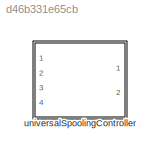
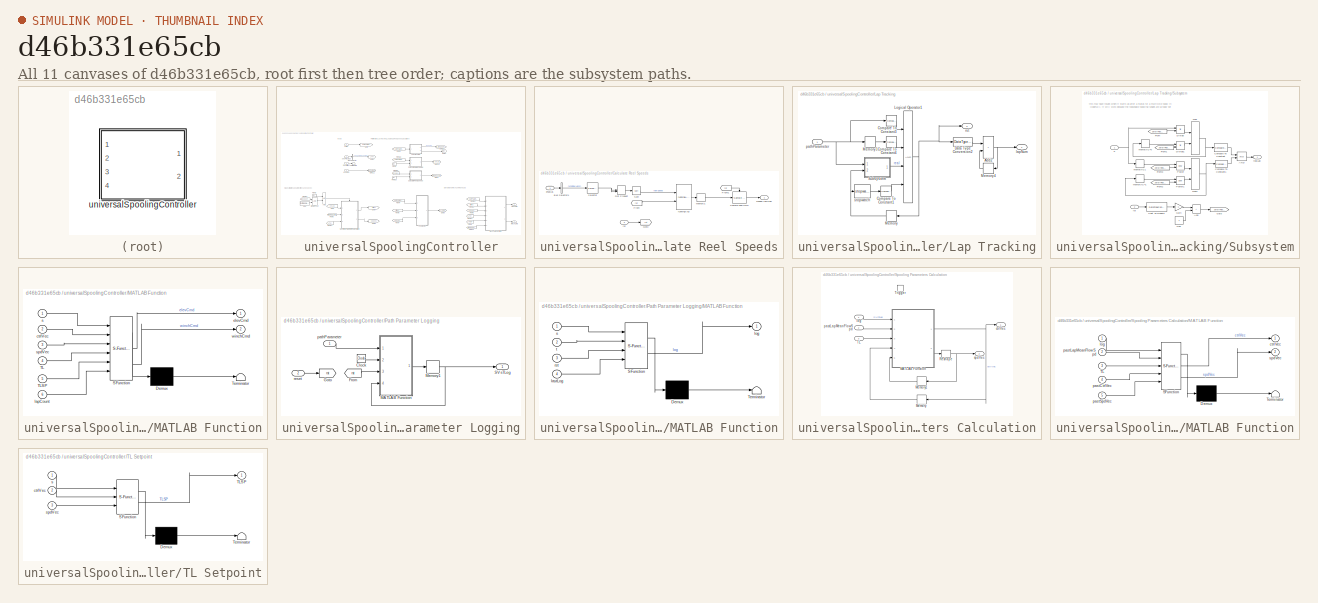
[diagram: thumbnail index - all 11 canvases of the model, root first then tree order]
MODEL slx_d46b331e65cb
KIND library
CONFIG AbsTol = auto
CONFIG EnableMultiTasking = off
CONFIG FixedStep = auto
CONFIG MaxStep = auto
CONFIG MinStep = auto
CONFIG RelTol = 1e-3
CONFIG SampleTimeConstraint = Unconstrained
CONFIG Solver = VariableStepAuto
CONFIG SolverName = VariableStepAuto
CONFIG StartTime = 0.0
CONFIG StopTime = 10.0
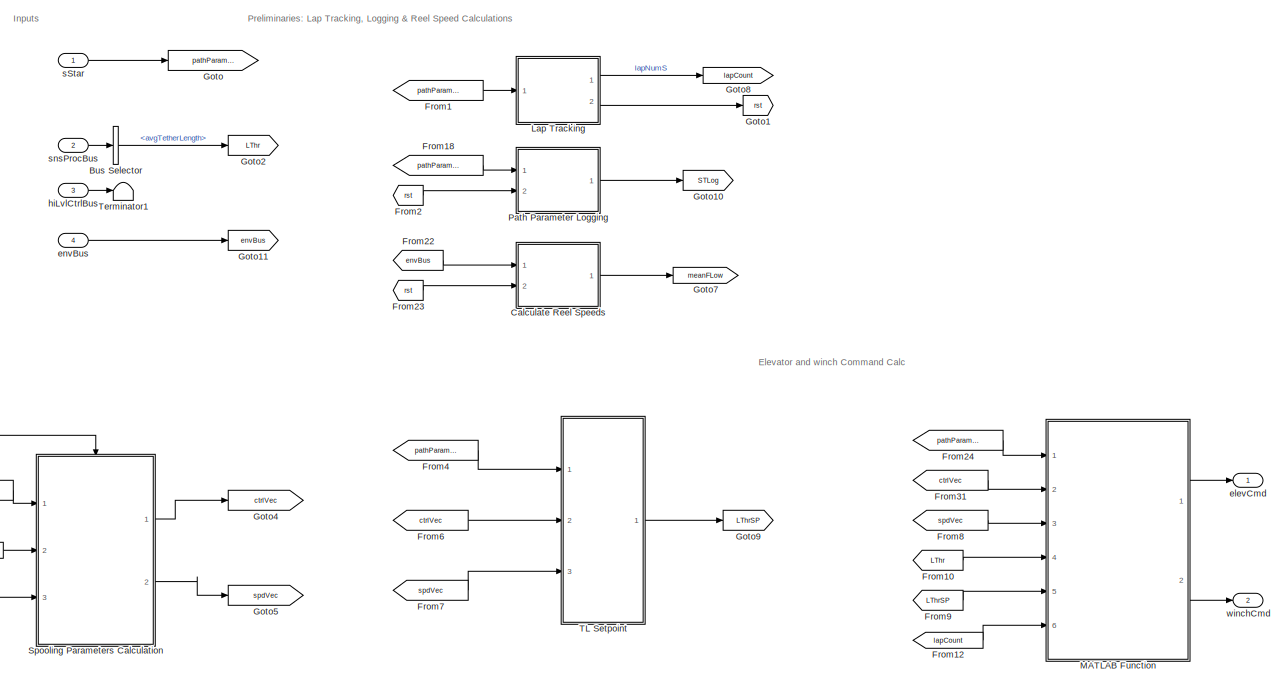
[diagram: universalSpoolingController - part 1/2, most of the canvas]
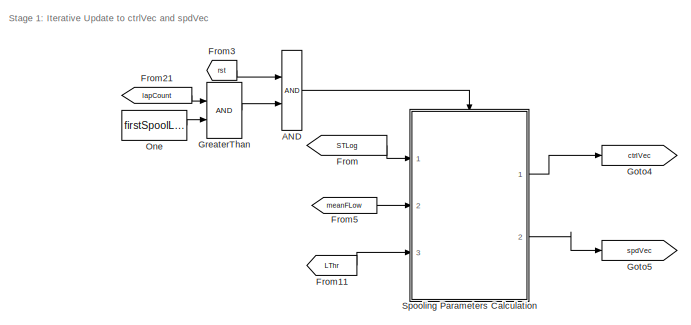
[diagram: universalSpoolingController - part 2/2, bottom left region]
BLOCK [SubSystem] universalSpoolingController
  Ports = [4, 2]
  RequestExecContextInheritance = off
  VariantControl = strcmpi(SPOOLINGCONTROLLER,'netZeroSpoolingController')
BLOCK [Logic] universalSpoolingController/AND
  AllPortsSameDT = off
  OutDataTypeStr = boolean
  Ports = [2, 1]
BLOCK [BusSelector] universalSpoolingController/Bus Selector
  OutputSignals = avgTetherLength
  Ports = [1, 1]
BLOCK [SubSystem] universalSpoolingController/Calculate Reel Speeds
  Ports = [2, 1]
  RequestExecContextInheritance = off
BLOCK [BusSelector] universalSpoolingController/Calculate Reel Speeds/Bus Selector1
  OutputSignals = vhclFlowVecs
  Ports = [1, 1]
BLOCK [DotProduct] universalSpoolingController/Calculate Reel Speeds/Dot Product
  OutDataTypeStr = Inherit: Inherit via internal rule
BLOCK [From] universalSpoolingController/Calculate Reel Speeds/From
  GotoTag = rst
BLOCK [From] universalSpoolingController/Calculate Reel Speeds/From1
  GotoTag = rst
BLOCK [Goto] universalSpoolingController/Calculate Reel Speeds/Goto
  GotoTag = rst
BLOCK [Memory] universalSpoolingController/Calculate Reel Speeds/Memory1
BLOCK [Reference] universalSpoolingController/Calculate Reel Speeds/Sample and Hold  REF=dspsigops/Sample
and Hold
  Ports = [1, 1, 0, 1]
  SourceBlock = dspsigops/Sample\nand Hold
  SourceProductBaseCode = DS
  SourceType = Sample and Hold
BLOCK [Selector] universalSpoolingController/Calculate Reel Speeds/Selector
  IndexOptions = Select all,Index vector (dialog)
  Indices = [1 3],5
  InputPortWidth = 3
  NumberOfDimensions = 2
  OutputSizes = 1,1
  Ports = [1, 1]
BLOCK [Sqrt] universalSpoolingController/Calculate Reel Speeds/Sqrt
BLOCK [Inport] universalSpoolingController/Calculate Reel Speeds/envBus
BLOCK [Outport] universalSpoolingController/Calculate Reel Speeds/meanFlowSpd
  VectorParamsAs1DForOutWhenUnconnected = off
BLOCK [Inport] universalSpoolingController/Calculate Reel Speeds/rst
  Port = 2
BLOCK [Reference] universalSpoolingController/Calculate Reel Speeds/runningAvg  REF=runningAvg_ul/runningAvg
  Ports = [2, 1]
  SourceBlock = runningAvg_ul/runningAvg
  SourceType = SubSystem
BLOCK [From] universalSpoolingController/From
  GotoTag = STLog
BLOCK [From] universalSpoolingController/From1
  GotoTag = pathParameter
BLOCK [From] universalSpoolingController/From10
  GotoTag = LThr
BLOCK [From] universalSpoolingController/From11
  GotoTag = LThr
BLOCK [From] universalSpoolingController/From12
  GotoTag = lapCount
BLOCK [From] universalSpoolingController/From18
  GotoTag = pathParameter
BLOCK [From] universalSpoolingController/From2
  GotoTag = rst
BLOCK [From] universalSpoolingController/From21
  GotoTag = lapCount
BLOCK [From] universalSpoolingController/From22
  GotoTag = envBus
BLOCK [From] universalSpoolingController/From23
  GotoTag = rst
BLOCK [From] universalSpoolingController/From24
  GotoTag = pathParameter
BLOCK [From] universalSpoolingController/From3
  GotoTag = rst
BLOCK [From] universalSpoolingController/From31
  GotoTag = ctrlVec
BLOCK [From] universalSpoolingController/From4
  GotoTag = pathParameter
BLOCK [From] universalSpoolingController/From5
  GotoTag = meanFLow
BLOCK [From] universalSpoolingController/From6
  GotoTag = ctrlVec
BLOCK [From] universalSpoolingController/From7
  GotoTag = spdVec
BLOCK [From] universalSpoolingController/From8
  GotoTag = spdVec
BLOCK [From] universalSpoolingController/From9
  GotoTag = LThrSP
BLOCK [Goto] universalSpoolingController/Goto
  GotoTag = pathParameter
BLOCK [Goto] universalSpoolingController/Goto1
  GotoTag = rst
BLOCK [Goto] universalSpoolingController/Goto10
  GotoTag = STLog
BLOCK [Goto] universalSpoolingController/Goto11
  GotoTag = envBus
BLOCK [Goto] universalSpoolingController/Goto2
  GotoTag = LThr
BLOCK [Goto] universalSpoolingController/Goto4
  GotoTag = ctrlVec
BLOCK [Goto] universalSpoolingController/Goto5
  GotoTag = spdVec
BLOCK [Goto] universalSpoolingController/Goto7
  GotoTag = meanFLow
BLOCK [Goto] universalSpoolingController/Goto8
  GotoTag = lapCount
BLOCK [Goto] universalSpoolingController/Goto9
  GotoTag = LThrSP
BLOCK [RelationalOperator] universalSpoolingController/GreaterThan
  InputSameDT = off
  OutDataTypeStr = boolean
  Ports = [2, 1]
  RndMeth = Simplest
BLOCK [SubSystem] universalSpoolingController/Lap Tracking
  Ports = [1, 2]
  RequestExecContextInheritance = off
BLOCK [Sum] universalSpoolingController/Lap Tracking/Add2
  IconShape = rectangular
  Ports = [2, 1]
BLOCK [Reference] universalSpoolingController/Lap Tracking/Compare To Constant1  REF=simulink/Logic and Bit
Operations/Compare
To Constant
  Ports = [1, 1]
  SourceBlock = simulink/Logic and Bit\nOperations/Compare\nTo Constant
  SourceProductBaseCode = SL
  SourceType = Compare To Constant
BLOCK [Reference] universalSpoolingController/Lap Tracking/Compare To Constant3  REF=simulink/Logic and Bit
Operations/Compare
To Constant
  Ports = [1, 1]
  SourceBlock = simulink/Logic and Bit\nOperations/Compare\nTo Constant
  SourceProductBaseCode = SL
  SourceType = Compare To Constant
BLOCK [Reference] universalSpoolingController/Lap Tracking/Compare To Constant4  REF=simulink/Logic and Bit
Operations/Compare
To Constant
  Ports = [1, 1]
  SourceBlock = simulink/Logic and Bit\nOperations/Compare\nTo Constant
  SourceProductBaseCode = SL
  SourceType = Compare To Constant
BLOCK [DataTypeConversion] universalSpoolingController/Lap Tracking/Data Type Conversion2
  OutDataTypeStr = double
  RndMeth = Floor
  SaturateOnIntegerOverflow = off
BLOCK [Logic] universalSpoolingController/Lap Tracking/Logical Operator1
  AllPortsSameDT = off
  Inputs = 4
  OutDataTypeStr = boolean
  Ports = [4, 1]
BLOCK [Memory] universalSpoolingController/Lap Tracking/Memory
  InitialCondition = false
BLOCK [Memory] universalSpoolingController/Lap Tracking/Memory3
BLOCK [Memory] universalSpoolingController/Lap Tracking/Memory4
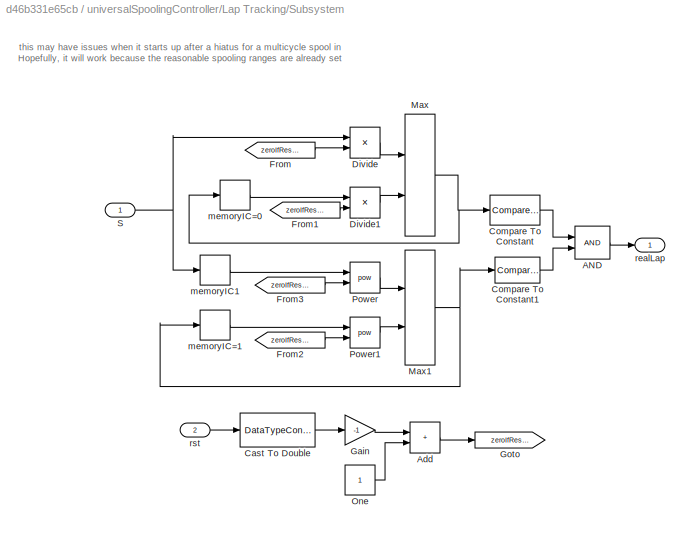
BLOCK [SubSystem] universalSpoolingController/Lap Tracking/Subsystem
  Ports = [2, 1]
  RequestExecContextInheritance = off
BLOCK [Logic] universalSpoolingController/Lap Tracking/Subsystem/AND
  AllPortsSameDT = off
  OutDataTypeStr = boolean
  Ports = [2, 1]
BLOCK [Sum] universalSpoolingController/Lap Tracking/Subsystem/Add
  IconShape = rectangular
  Ports = [2, 1]
BLOCK [DataTypeConversion] universalSpoolingController/Lap Tracking/Subsystem/Cast To Double
  OutDataTypeStr = double
  RndMeth = Floor
  SaturateOnIntegerOverflow = off
BLOCK [Reference] universalSpoolingController/Lap Tracking/Subsystem/Compare To Constant  REF=simulink/Logic and Bit
Operations/Compare
To Constant
  Ports = [1, 1]
  SourceBlock = simulink/Logic and Bit\nOperations/Compare\nTo Constant
  SourceProductBaseCode = SL
  SourceType = Compare To Constant
BLOCK [Reference] universalSpoolingController/Lap Tracking/Subsystem/Compare To Constant1  REF=simulink/Logic and Bit
Operations/Compare
To Constant
  Ports = [1, 1]
  SourceBlock = simulink/Logic and Bit\nOperations/Compare\nTo Constant
  SourceProductBaseCode = SL
  SourceType = Compare To Constant
BLOCK [Product] universalSpoolingController/Lap Tracking/Subsystem/Divide
  Inputs = **
  Ports = [2, 1]
BLOCK [Product] universalSpoolingController/Lap Tracking/Subsystem/Divide1
  Inputs = **
  Ports = [2, 1]
BLOCK [From] universalSpoolingController/Lap Tracking/Subsystem/From
  GotoTag = zeroIfReset
BLOCK [From] universalSpoolingController/Lap Tracking/Subsystem/From1
  GotoTag = zeroIfReset
BLOCK [From] universalSpoolingController/Lap Tracking/Subsystem/From2
  GotoTag = zeroIfReset
BLOCK [From] universalSpoolingController/Lap Tracking/Subsystem/From3
  GotoTag = zeroIfReset
BLOCK [Gain] universalSpoolingController/Lap Tracking/Subsystem/Gain
  Gain = -1
BLOCK [Goto] universalSpoolingController/Lap Tracking/Subsystem/Goto
  GotoTag = zeroIfReset
BLOCK [MinMax] universalSpoolingController/Lap Tracking/Subsystem/Max
  Function = max
  Inputs = 2
  Ports = [2, 1]
BLOCK [MinMax] universalSpoolingController/Lap Tracking/Subsystem/Max1
  Inputs = 2
  Ports = [2, 1]
BLOCK [Constant] universalSpoolingController/Lap Tracking/Subsystem/One
  OutDataTypeStr = Inherit: Inherit via back propagation
BLOCK [Math] universalSpoolingController/Lap Tracking/Subsystem/Power
  Operator = pow
  Ports = [2, 1]
BLOCK [Math] universalSpoolingController/Lap Tracking/Subsystem/Power1
  Operator = pow
  Ports = [2, 1]
BLOCK [Inport] universalSpoolingController/Lap Tracking/Subsystem/S
BLOCK [Memory] universalSpoolingController/Lap Tracking/Subsystem/memoryIC1
  InitialCondition = 1
BLOCK [Memory] universalSpoolingController/Lap Tracking/Subsystem/memoryIC=0
BLOCK [Memory] universalSpoolingController/Lap Tracking/Subsystem/memoryIC=1
  InitialCondition = 1
BLOCK [Outport] universalSpoolingController/Lap Tracking/Subsystem/realLap
BLOCK [Inport] universalSpoolingController/Lap Tracking/Subsystem/rst
  Port = 2
BLOCK [Outport] universalSpoolingController/Lap Tracking/lapNum
  VectorParamsAs1DForOutWhenUnconnected = off
BLOCK [Inport] universalSpoolingController/Lap Tracking/pathParameter
BLOCK [Outport] universalSpoolingController/Lap Tracking/rst
  Port = 2
  VectorParamsAs1DForOutWhenUnconnected = off
BLOCK [Reference] universalSpoolingController/Lap Tracking/stopwatch  REF=stopwatch_ul/stopwatch  (lib defined in slx_5231e8830116, slx_6b86a6863970)
  Ports = [1, 1]
  SourceBlock = stopwatch_ul/stopwatch
  SourceType = SubSystem
BLOCK [SubSystem] universalSpoolingController/MATLAB Function
  ErrorFcn = Stateflow.Translate.translate
  PermitHierarchicalResolution = ExplicitOnly
  Ports = [6, 2]
  RequestExecContextInheritance = off
  SFBlockType = MATLAB Function
  TreatAsAtomicUnit = on
BLOCK [Demux] universalSpoolingController/MATLAB Function/ Demux 
  Outputs = 1
  Ports = [1, 1]
BLOCK [S-Function] universalSpoolingController/MATLAB Function/ SFunction 
  EnableBusSupport = off
  FunctionName = sf_sfun
  Parameters = elevDeflIn,firstSpoolLap
  PortCounts = [6 3]
  Ports = [6, 3]
  SFcnIsStateOwnerBlock = off
  SFunctionDeploymentMode = off
  Tag = Stateflow S-Function 4
BLOCK [Terminator] universalSpoolingController/MATLAB Function/ Terminator 
BLOCK [Inport] universalSpoolingController/MATLAB Function/TL
  Port = 4
BLOCK [Inport] universalSpoolingController/MATLAB Function/TLSP
  Port = 5
BLOCK [Inport] universalSpoolingController/MATLAB Function/ctrlVec
  Port = 2
BLOCK [Outport] universalSpoolingController/MATLAB Function/elevCmd
  VectorParamsAs1DForOutWhenUnconnected = off
BLOCK [Inport] universalSpoolingController/MATLAB Function/lapCount
  Port = 6
BLOCK [Inport] universalSpoolingController/MATLAB Function/s
BLOCK [Inport] universalSpoolingController/MATLAB Function/spdVec
  Port = 3
BLOCK [Outport] universalSpoolingController/MATLAB Function/winchCmd
  Port = 2
  VectorParamsAs1DForOutWhenUnconnected = off
BLOCK [Constant] universalSpoolingController/One
  OutDataTypeStr = Inherit: Inherit via back propagation
  Value = firstSpoolLap
BLOCK [SubSystem] universalSpoolingController/Path Parameter Logging
  Ports = [2, 1]
  RequestExecContextInheritance = off
BLOCK [Clock] universalSpoolingController/Path Parameter Logging/Clock
BLOCK [From] universalSpoolingController/Path Parameter Logging/From
  GotoTag = rst
BLOCK [Goto] universalSpoolingController/Path Parameter Logging/Goto
  GotoTag = rst
BLOCK [SubSystem] universalSpoolingController/Path Parameter Logging/MATLAB Function
  ErrorFcn = Stateflow.Translate.translate
  PermitHierarchicalResolution = ExplicitOnly
  Ports = [4, 1]
  RequestExecContextInheritance = off
  SFBlockType = MATLAB Function
  TreatAsAtomicUnit = on
BLOCK [Demux] universalSpoolingController/Path Parameter Logging/MATLAB Function/ Demux 
  Outputs = 1
  Ports = [1, 1]
BLOCK [S-Function] universalSpoolingController/Path Parameter Logging/MATLAB Function/ SFunction 
  EnableBusSupport = off
  FunctionName = sf_sfun
  PortCounts = [4 2]
  Ports = [4, 2]
  SFcnIsStateOwnerBlock = off
  SFunctionDeploymentMode = off
  Tag = Stateflow S-Function 2
BLOCK [Terminator] universalSpoolingController/Path Parameter Logging/MATLAB Function/ Terminator 
BLOCK [Inport] universalSpoolingController/Path Parameter Logging/MATLAB Function/lastLog
  Port = 4
BLOCK [Outport] universalSpoolingController/Path Parameter Logging/MATLAB Function/log
  VectorParamsAs1DForOutWhenUnconnected = off
BLOCK [Inport] universalSpoolingController/Path Parameter Logging/MATLAB Function/rst
  Port = 3
BLOCK [Inport] universalSpoolingController/Path Parameter Logging/MATLAB Function/s
BLOCK [Inport] universalSpoolingController/Path Parameter Logging/MATLAB Function/t
  Port = 2
BLOCK [Memory] universalSpoolingController/Path Parameter Logging/Memory1
  InitialCondition = zeros(1000,2)
BLOCK [Outport] universalSpoolingController/Path Parameter Logging/SVsTLog
  VectorParamsAs1DForOutWhenUnconnected = off
BLOCK [Inport] universalSpoolingController/Path Parameter Logging/pathParameter
BLOCK [Inport] universalSpoolingController/Path Parameter Logging/reset
  Port = 2
BLOCK [SubSystem] universalSpoolingController/Spooling Parameters Calculation
  Ports = [3, 2, 0, 1]
  RequestExecContextInheritance = off
  TreatAsAtomicUnit = on
BLOCK [SubSystem] universalSpoolingController/Spooling Parameters Calculation/MATLAB Function
  ErrorFcn = Stateflow.Translate.translate
  PermitHierarchicalResolution = ExplicitOnly
  Ports = [5, 2]
  RequestExecContextInheritance = off
  SFBlockType = MATLAB Function
  TreatAsAtomicUnit = on
BLOCK [Demux] universalSpoolingController/Spooling Parameters Calculation/MATLAB Function/ Demux 
  Outputs = 1
  Ports = [1, 1]
BLOCK [S-Function] universalSpoolingController/Spooling Parameters Calculation/MATLAB Function/ SFunction 
  EnableBusSupport = off
  FunctionName = sf_sfun
  Parameters = intraDrift
  PortCounts = [5 3]
  Ports = [5, 3]
  SFcnIsStateOwnerBlock = off
  SFunctionDeploymentMode = off
  Tag = Stateflow S-Function 1
BLOCK [Terminator] universalSpoolingController/Spooling Parameters Calculation/MATLAB Function/ Terminator 
BLOCK [Inport] universalSpoolingController/Spooling Parameters Calculation/MATLAB Function/TL
  Port = 3
BLOCK [Outport] universalSpoolingController/Spooling Parameters Calculation/MATLAB Function/ctrlVec
  VectorParamsAs1DForOutWhenUnconnected = off
BLOCK [Inport] universalSpoolingController/Spooling Parameters Calculation/MATLAB Function/log
BLOCK [Inport] universalSpoolingController/Spooling Parameters Calculation/MATLAB Function/pastCtrlVec
  Port = 4
BLOCK [Inport] universalSpoolingController/Spooling Parameters Calculation/MATLAB Function/pastLapMeanFlowSpd
  Port = 2
BLOCK [Inport] universalSpoolingController/Spooling Parameters Calculation/MATLAB Function/pastSpdVec
  Port = 5
BLOCK [Outport] universalSpoolingController/Spooling Parameters Calculation/MATLAB Function/spdVec
  Port = 2
  VectorParamsAs1DForOutWhenUnconnected = off
BLOCK [Memory] universalSpoolingController/Spooling Parameters Calculation/Memory
  InheritSampleTime = on
  InitialCondition = ctrlVecInit
BLOCK [Memory] universalSpoolingController/Spooling Parameters Calculation/Memory1
  InheritSampleTime = on
  InitialCondition = spdVecInit
BLOCK [Reshape] universalSpoolingController/Spooling Parameters Calculation/Reshape
  Ports = [1, 1]
BLOCK [Inport] universalSpoolingController/Spooling Parameters Calculation/TL
  Port = 3
BLOCK [TriggerPort] universalSpoolingController/Spooling Parameters Calculation/Trigger
  Ports = []
  StatesWhenEnabling = held
  VariantControl = Variant
BLOCK [Outport] universalSpoolingController/Spooling Parameters Calculation/ctrlVec
  InitialOutput = ctrlVecInit
  VectorParamsAs1DForOutWhenUnconnected = off
BLOCK [Inport] universalSpoolingController/Spooling Parameters Calculation/log
BLOCK [Inport] universalSpoolingController/Spooling Parameters Calculation/pastLapMeanFlowSpd
  Port = 2
BLOCK [Outport] universalSpoolingController/Spooling Parameters Calculation/spdVec
  InitialOutput = spdVecInit
  Port = 2
  VectorParamsAs1DForOutWhenUnconnected = off
BLOCK [SubSystem] universalSpoolingController/TL Setpoint
  ErrorFcn = Stateflow.Translate.translate
  PermitHierarchicalResolution = ExplicitOnly
  Ports = [3, 1]
  RequestExecContextInheritance = off
  SFBlockType = MATLAB Function
  TreatAsAtomicUnit = on
BLOCK [Demux] universalSpoolingController/TL Setpoint/ Demux 
  Outputs = 1
  Ports = [1, 1]
BLOCK [S-Function] universalSpoolingController/TL Setpoint/ SFunction 
  EnableBusSupport = off
  FunctionName = sf_sfun
  PortCounts = [3 2]
  Ports = [3, 2]
  SFcnIsStateOwnerBlock = off
  SFunctionDeploymentMode = off
  Tag = Stateflow S-Function 3
BLOCK [Terminator] universalSpoolingController/TL Setpoint/ Terminator 
BLOCK [Outport] universalSpoolingController/TL Setpoint/TLSP
BLOCK [Inport] universalSpoolingController/TL Setpoint/ctrlVec
  Port = 2
BLOCK [Inport] universalSpoolingController/TL Setpoint/s
BLOCK [Inport] universalSpoolingController/TL Setpoint/spdVec
  Port = 3
BLOCK [Terminator] universalSpoolingController/Terminator1
BLOCK [Outport] universalSpoolingController/elevCmd
  VectorParamsAs1DForOutWhenUnconnected = off
BLOCK [Inport] universalSpoolingController/envBus
  OutDataTypeStr = Bus: envBus
  Port = 4
BLOCK [Inport] universalSpoolingController/hiLvlCtrlBus
  OutDataTypeStr = Bus: hiLvlCtrlBus
  Port = 3
BLOCK [Inport] universalSpoolingController/sStar 
BLOCK [Inport] universalSpoolingController/snsProcBus
  OutDataTypeStr = Bus: sensorsProcessingBus
  Port = 2
BLOCK [Outport] universalSpoolingController/winchCmd
  Port = 2
  VectorParamsAs1DForOutWhenUnconnected = off
ANNOTATION universalSpoolingController: Elevator and winch Command Calc
ANNOTATION universalSpoolingController: Inputs
ANNOTATION universalSpoolingController: Preliminaries: Lap Tracking, Logging & Reel Speed Calculations
ANNOTATION universalSpoolingController: Stage 1: Iterative Update to ctrlVec and spdVec
ANNOTATION universalSpoolingController/Lap Tracking/Subsystem: this may have issues when it starts up after a hiatus for a multicycle spool in Hopefully, it will work because the reasonable spooling ranges are already set
LINE universalSpoolingController/AND:1 -> universalSpoolingController/Spooling Parameters Calculation:trigger
LINE universalSpoolingController/Bus Selector:1 -> universalSpoolingController/Goto2:1
LINE universalSpoolingController/Calculate Reel Speeds/Bus Selector1:1 -> universalSpoolingController/Calculate Reel Speeds/Selector:1
LINE universalSpoolingController/Calculate Reel Speeds/Dot Product:1 -> universalSpoolingController/Calculate Reel Speeds/Sqrt:1
LINE universalSpoolingController/Calculate Reel Speeds/From1:1 -> universalSpoolingController/Calculate Reel Speeds/Sample and Hold:trigger
LINE universalSpoolingController/Calculate Reel Speeds/From:1 -> universalSpoolingController/Calculate Reel Speeds/runningAvg:2
LINE universalSpoolingController/Calculate Reel Speeds/Memory1:1 -> universalSpoolingController/Calculate Reel Speeds/Sample and Hold:1
LINE universalSpoolingController/Calculate Reel Speeds/Sample and Hold:1 -> universalSpoolingController/Calculate Reel Speeds/meanFlowSpd:1
NET universalSpoolingController/Calculate Reel Speeds/Selector:1 -> universalSpoolingController/Calculate Reel Speeds/Dot Product:1, universalSpoolingController/Calculate Reel Speeds/Dot Product:2
LINE universalSpoolingController/Calculate Reel Speeds/Sqrt:1 -> universalSpoolingController/Calculate Reel Speeds/runningAvg:1
LINE universalSpoolingController/Calculate Reel Speeds/envBus:1 -> universalSpoolingController/Calculate Reel Speeds/Bus Selector1:1
LINE universalSpoolingController/Calculate Reel Speeds/rst:1 -> universalSpoolingController/Calculate Reel Speeds/Goto:1
LINE universalSpoolingController/Calculate Reel Speeds/runningAvg:1 -> universalSpoolingController/Calculate Reel Speeds/Memory1:1
LINE universalSpoolingController/Calculate Reel Speeds:1 -> universalSpoolingController/Goto7:1
LINE universalSpoolingController/From10:1 -> universalSpoolingController/MATLAB Function:4
LINE universalSpoolingController/From11:1 -> universalSpoolingController/Spooling Parameters Calculation:3
LINE universalSpoolingController/From12:1 -> universalSpoolingController/MATLAB Function:6
LINE universalSpoolingController/From18:1 -> universalSpoolingController/Path Parameter Logging:1
LINE universalSpoolingController/From1:1 -> universalSpoolingController/Lap Tracking:1
LINE universalSpoolingController/From21:1 -> universalSpoolingController/GreaterThan:1
LINE universalSpoolingController/From22:1 -> universalSpoolingController/Calculate Reel Speeds:1
LINE universalSpoolingController/From23:1 -> universalSpoolingController/Calculate Reel Speeds:2
LINE universalSpoolingController/From24:1 -> universalSpoolingController/MATLAB Function:1
LINE universalSpoolingController/From2:1 -> universalSpoolingController/Path Parameter Logging:2
LINE universalSpoolingController/From31:1 -> universalSpoolingController/MATLAB Function:2
LINE universalSpoolingController/From3:1 -> universalSpoolingController/AND:1
LINE universalSpoolingController/From4:1 -> universalSpoolingController/TL Setpoint:1
LINE universalSpoolingController/From5:1 -> universalSpoolingController/Spooling Parameters Calculation:2
LINE universalSpoolingController/From6:1 -> universalSpoolingController/TL Setpoint:2
LINE universalSpoolingController/From7:1 -> universalSpoolingController/TL Setpoint:3
LINE universalSpoolingController/From8:1 -> universalSpoolingController/MATLAB Function:3
LINE universalSpoolingController/From9:1 -> universalSpoolingController/MATLAB Function:5
LINE universalSpoolingController/From:1 -> universalSpoolingController/Spooling Parameters Calculation:1
LINE universalSpoolingController/GreaterThan:1 -> universalSpoolingController/AND:2
NET universalSpoolingController/Lap Tracking/Add2:1 -> universalSpoolingController/Lap Tracking/Memory4:1, universalSpoolingController/Lap Tracking/lapNum:1
LINE universalSpoolingController/Lap Tracking/Compare To Constant1:1 -> universalSpoolingController/Lap Tracking/Logical Operator1:4
LINE universalSpoolingController/Lap Tracking/Compare To Constant3:1 -> universalSpoolingController/Lap Tracking/Logical Operator1:1
LINE universalSpoolingController/Lap Tracking/Compare To Constant4:1 -> universalSpoolingController/Lap Tracking/Logical Operator1:2
LINE universalSpoolingController/Lap Tracking/Data Type Conversion2:1 -> universalSpoolingController/Lap Tracking/Add2:1
NET universalSpoolingController/Lap Tracking/Logical Operator1:1 -> universalSpoolingController/Lap Tracking/Data Type Conversion2:1, universalSpoolingController/Lap Tracking/Memory:1, universalSpoolingController/Lap Tracking/rst:1
LINE universalSpoolingController/Lap Tracking/Memory3:1 -> universalSpoolingController/Lap Tracking/Compare To Constant4:1
LINE universalSpoolingController/Lap Tracking/Memory4:1 -> universalSpoolingController/Lap Tracking/Add2:2
NET universalSpoolingController/Lap Tracking/Memory:1 -> universalSpoolingController/Lap Tracking/Subsystem:2, universalSpoolingController/Lap Tracking/stopwatch:1
LINE universalSpoolingController/Lap Tracking/Subsystem/AND:1 -> universalSpoolingController/Lap Tracking/Subsystem/realLap:1
LINE universalSpoolingController/Lap Tracking/Subsystem/Add:1 -> universalSpoolingController/Lap Tracking/Subsystem/Goto:1
LINE universalSpoolingController/Lap Tracking/Subsystem/Cast To Double:1 -> universalSpoolingController/Lap Tracking/Subsystem/Gain:1
LINE universalSpoolingController/Lap Tracking/Subsystem/Compare To Constant1:1 -> universalSpoolingController/Lap Tracking/Subsystem/AND:2
LINE universalSpoolingController/Lap Tracking/Subsystem/Compare To Constant:1 -> universalSpoolingController/Lap Tracking/Subsystem/AND:1
LINE universalSpoolingController/Lap Tracking/Subsystem/Divide1:1 -> universalSpoolingController/Lap Tracking/Subsystem/Max:2
LINE universalSpoolingController/Lap Tracking/Subsystem/Divide:1 -> universalSpoolingController/Lap Tracking/Subsystem/Max:1
LINE universalSpoolingController/Lap Tracking/Subsystem/From1:1 -> universalSpoolingController/Lap Tracking/Subsystem/Divide1:2
LINE universalSpoolingController/Lap Tracking/Subsystem/From2:1 -> universalSpoolingController/Lap Tracking/Subsystem/Power1:2
LINE universalSpoolingController/Lap Tracking/Subsystem/From3:1 -> universalSpoolingController/Lap Tracking/Subsystem/Power:2
LINE universalSpoolingController/Lap Tracking/Subsystem/From:1 -> universalSpoolingController/Lap Tracking/Subsystem/Divide:2
LINE universalSpoolingController/Lap Tracking/Subsystem/Gain:1 -> universalSpoolingController/Lap Tracking/Subsystem/Add:1
NET universalSpoolingController/Lap Tracking/Subsystem/Max1:1 -> universalSpoolingController/Lap Tracking/Subsystem/Compare To Constant1:1, universalSpoolingController/Lap Tracking/Subsystem/memoryIC=1:1
NET universalSpoolingController/Lap Tracking/Subsystem/Max:1 -> universalSpoolingController/Lap Tracking/Subsystem/Compare To Constant:1, universalSpoolingController/Lap Tracking/Subsystem/memoryIC=0:1
LINE universalSpoolingController/Lap Tracking/Subsystem/One:1 -> universalSpoolingController/Lap Tracking/Subsystem/Add:2
LINE universalSpoolingController/Lap Tracking/Subsystem/Power1:1 -> universalSpoolingController/Lap Tracking/Subsystem/Max1:2
LINE universalSpoolingController/Lap Tracking/Subsystem/Power:1 -> universalSpoolingController/Lap Tracking/Subsystem/Max1:1
NET universalSpoolingController/Lap Tracking/Subsystem/S:1 -> universalSpoolingController/Lap Tracking/Subsystem/Divide:1, universalSpoolingController/Lap Tracking/Subsystem/memoryIC1:1
LINE universalSpoolingController/Lap Tracking/Subsystem/memoryIC1:1 -> universalSpoolingController/Lap Tracking/Subsystem/Power:1
LINE universalSpoolingController/Lap Tracking/Subsystem/memoryIC=0:1 -> universalSpoolingController/Lap Tracking/Subsystem/Divide1:1
LINE universalSpoolingController/Lap Tracking/Subsystem/memoryIC=1:1 -> universalSpoolingController/Lap Tracking/Subsystem/Power1:1
LINE universalSpoolingController/Lap Tracking/Subsystem/rst:1 -> universalSpoolingController/Lap Tracking/Subsystem/Cast To Double:1
LINE universalSpoolingController/Lap Tracking/Subsystem:1 -> universalSpoolingController/Lap Tracking/Logical Operator1:3
NET universalSpoolingController/Lap Tracking/pathParameter:1 -> universalSpoolingController/Lap Tracking/Compare To Constant3:1, universalSpoolingController/Lap Tracking/Memory3:1, universalSpoolingController/Lap Tracking/Subsystem:1
LINE universalSpoolingController/Lap Tracking/stopwatch:1 -> universalSpoolingController/Lap Tracking/Compare To Constant1:1
LINE universalSpoolingController/Lap Tracking:1 -> universalSpoolingController/Goto8:1
LINE universalSpoolingController/Lap Tracking:2 -> universalSpoolingController/Goto1:1
LINE universalSpoolingController/MATLAB Function:1 -> universalSpoolingController/elevCmd:1
LINE universalSpoolingController/MATLAB Function:2 -> universalSpoolingController/winchCmd:1
LINE universalSpoolingController/One:1 -> universalSpoolingController/GreaterThan:2
LINE universalSpoolingController/Path Parameter Logging/Clock:1 -> universalSpoolingController/Path Parameter Logging/MATLAB Function:2
LINE universalSpoolingController/Path Parameter Logging/From:1 -> universalSpoolingController/Path Parameter Logging/MATLAB Function:3
LINE universalSpoolingController/Path Parameter Logging/MATLAB Function:1 -> universalSpoolingController/Path Parameter Logging/Memory1:1
NET universalSpoolingController/Path Parameter Logging/Memory1:1 -> universalSpoolingController/Path Parameter Logging/MATLAB Function:4, universalSpoolingController/Path Parameter Logging/SVsTLog:1
LINE universalSpoolingController/Path Parameter Logging/pathParameter:1 -> universalSpoolingController/Path Parameter Logging/MATLAB Function:1
LINE universalSpoolingController/Path Parameter Logging/reset:1 -> universalSpoolingController/Path Parameter Logging/Goto:1
LINE universalSpoolingController/Path Parameter Logging:1 -> universalSpoolingController/Goto10:1
NET universalSpoolingController/Spooling Parameters Calculation/MATLAB Function:1 -> universalSpoolingController/Spooling Parameters Calculation/Memory:1, universalSpoolingController/Spooling Parameters Calculation/ctrlVec:1
LINE universalSpoolingController/Spooling Parameters Calculation/MATLAB Function:2 -> universalSpoolingController/Spooling Parameters Calculation/Reshape:1
LINE universalSpoolingController/Spooling Parameters Calculation/Memory1:1 -> universalSpoolingController/Spooling Parameters Calculation/MATLAB Function:5
LINE universalSpoolingController/Spooling Parameters Calculation/Memory:1 -> universalSpoolingController/Spooling Parameters Calculation/MATLAB Function:4
NET universalSpoolingController/Spooling Parameters Calculation/Reshape:1 -> universalSpoolingController/Spooling Parameters Calculation/Memory1:1, universalSpoolingController/Spooling Parameters Calculation/spdVec:1
LINE universalSpoolingController/Spooling Parameters Calculation/TL:1 -> universalSpoolingController/Spooling Parameters Calculation/MATLAB Function:3
LINE universalSpoolingController/Spooling Parameters Calculation/log:1 -> universalSpoolingController/Spooling Parameters Calculation/MATLAB Function:1
LINE universalSpoolingController/Spooling Parameters Calculation/pastLapMeanFlowSpd:1 -> universalSpoolingController/Spooling Parameters Calculation/MATLAB Function:2
LINE universalSpoolingController/Spooling Parameters Calculation:1 -> universalSpoolingController/Goto4:1
LINE universalSpoolingController/Spooling Parameters Calculation:2 -> universalSpoolingController/Goto5:1
LINE universalSpoolingController/TL Setpoint:1 -> universalSpoolingController/Goto9:1
LINE universalSpoolingController/envBus:1 -> universalSpoolingController/Goto11:1
LINE universalSpoolingController/hiLvlCtrlBus:1 -> universalSpoolingController/Terminator1:1
LINE universalSpoolingController/sStar :1 -> universalSpoolingController/Goto:1
LINE universalSpoolingController/snsProcBus:1 -> universalSpoolingController/Bus Selector:1
note: NET lines group one-source signal fan-out (src -> all destinations, sorted); 1:1 wires keep LINE
CHART universalSpoolingController/Spooling Parameters
Calculation/MATLAB Function states=1 transitions=1
  STATE_LABEL 'eML_blk_kernel()'
  STATE_LABEL 'SCRIPT:\nfunction [ctrlVec,spdVec] = fcn(log,pastLapMeanFlowSpd,TL,pastCtrlVec,pastSpdVec,intraDrift)\n    [ctrlVec, spdVec] = combinedCtrl(log,pastLapMeanFlowSpd,TL,pastCtrlVec,pastSpdVec,intraDrift);\nend\n'
CHART universalSpoolingController/Path Parameter
Logging/MATLAB Function states=1 transitions=1
  STATE_LABEL 'eML_blk_kernel()'
  STATE_LABEL 'SCRIPT:\nfunction log = fcn(s,t,rst,lastLog)\n% function that logs the path position and time into a matrix\n% [pathPosition,t]\nif rst\n    lastLog = nan(1000,2);\nend\nlog = lastLog;\nidx = min([max([round(s*1000),1]),1000]);\nlog(idx,1) = s;\nlog(idx,2) = t;\n\n\n'
CHART universalSpoolingController/TL Setpoint states=1 transitions=1
  STATE_LABEL 'eML_blk_kernel()'
  STATE_LABEL 'SCRIPT:\nfunction TLSP = fcn(s,ctrlVec,spdVec) %#ok<*INUSD>\n    TLSP = combinedTLSP(s,ctrlVec,spdVec);\nend\n'
CHART universalSpoolingController/MATLAB Function states=1 transitions=1
  STATE_LABEL 'eML_blk_kernel()'
  STATE_LABEL 'SCRIPT:\nfunction [elevCmd, winchCmd] = fcn(s,ctrlVec,spdVec,TL,TLSP,lapCount,elevDeflIn, firstSpoolLap)\n    [elevCmd, winchCmd] = combinedCmd(s,ctrlVec,spdVec,TL,TLSP,lapCount,elevDeflIn,firstSpoolLap);\nend'
CHART  states=0 transitions=0
CHART  states=0 transitions=0
CHART  states=0 transitions=0
CHART  states=0 transitions=0
